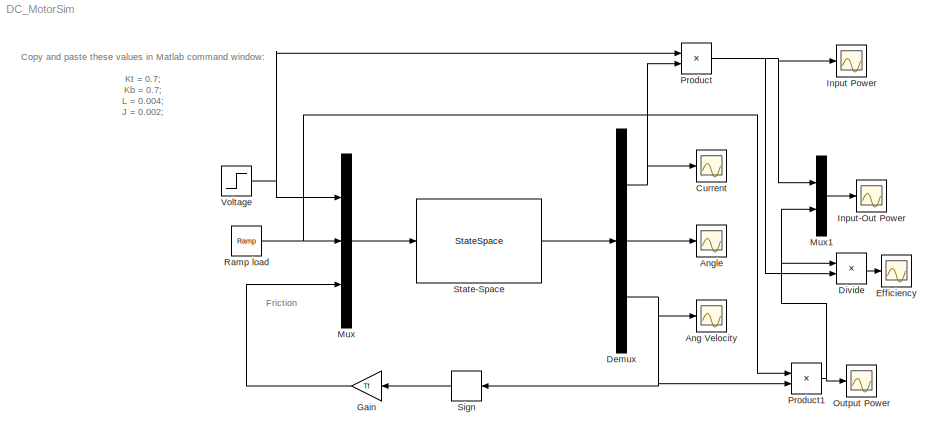
MODEL DC_MotorSim
KIND model
BLOCK [Scope] Ang Velocity
  Ports = [1]
  SID = 7
  ScopeSpecificationString = Simulink.scopes.TimeScopeBlockCfg('CurrentConfiguration', extmgr.ConfigurationSet(extmgr.Configuration('Core','General UI',true),extmgr.Configuration('Core','Source UI',true),extmgr.Configuration('Sources','WiredSimulink',true,'DataLoggingVariableName','ScopeData2'),extmgr.Configuration('Visuals','Time Domain',true,'SerializedDisplays',{struct('MinYLimReal','-0.91507','MaxYLimReal','0.99839','YLab...<+1412ch>
BLOCK [Scope] Angle
  Ports = [1]
  SID = 6
  ScopeSpecificationString = Simulink.scopes.TimeScopeBlockCfg('CurrentConfiguration', extmgr.ConfigurationSet(extmgr.Configuration('Core','General UI',true),extmgr.Configuration('Core','Source UI',true),extmgr.Configuration('Sources','WiredSimulink',true,'DataLoggingVariableName','ScopeData1'),extmgr.Configuration('Visuals','Time Domain',true,'SerializedDisplays',{struct('MinYLimReal','-0.15872','MaxYLimReal','1.42852','YLab...<+1393ch>
BLOCK [Scope] Current
  Ports = [1]
  SID = 5
  ScopeSpecificationString = Simulink.scopes.TimeScopeBlockCfg('CurrentConfiguration', extmgr.ConfigurationSet(extmgr.Configuration('Core','General UI',true),extmgr.Configuration('Core','Source UI',true),extmgr.Configuration('Sources','WiredSimulink',true),extmgr.Configuration('Visuals','Time Domain',true,'SerializedDisplays',{struct('MinYLimReal','-0.01225','MaxYLimReal','0.11023','YLabelReal','','MinYLimMag','0.00000','MaxY...<+1354ch>
BLOCK [Demux] Demux
  DisplayOption = bar
  Outputs = 3
  Ports = [1, 3]
  SID = 3
BLOCK [Product] Divide
  InputSameDT = off
  Inputs = */
  OutDataTypeStr = Inherit: Inherit via internal rule
  Ports = [2, 1]
  RndMeth = Floor
  SID = 22
  SaturateOnIntegerOverflow = off
BLOCK [Scope] Efficiency
  Ports = [1]
  SID = 23
  ScopeSpecificationString = Simulink.scopes.TimeScopeBlockCfg('CurrentConfiguration', extmgr.ConfigurationSet(extmgr.Configuration('Core','General UI',true),extmgr.Configuration('Core','Source UI',true),extmgr.Configuration('Sources','WiredSimulink',true,'DataLoggingVariableName','ScopeData3'),extmgr.Configuration('Visuals','Time Domain',true,'SerializedDisplays',{struct('MinYLimReal','-0.02152','MaxYLimReal','0.19364','YLab...<+1411ch>
BLOCK [Gain] Gain
  Gain = Tf
  OutDataTypeStr = Inherit: Inherit via internal rule
  ParamDataTypeStr = Inherit: Inherit via internal rule
  SID = 12
  SaturateOnIntegerOverflow = off
BLOCK [Scope] Input Power
  Ports = [1]
  SID = 10
  ScopeSpecificationString = Simulink.scopes.TimeScopeBlockCfg('CurrentConfiguration', extmgr.ConfigurationSet(extmgr.Configuration('Core','General UI',true),extmgr.Configuration('Core','Source UI',true),extmgr.Configuration('Sources','WiredSimulink',true,'DataLoggingVariableName','ScopeData3'),extmgr.Configuration('Visuals','Time Domain',true,'SerializedDisplays',{struct('MinYLimReal','-0.01225','MaxYLimReal','0.11023','YLab...<+1393ch>
BLOCK [Scope] Input-Out Power
  Ports = [1]
  SID = 19
  ScopeSpecificationString = Simulink.scopes.TimeScopeBlockCfg('CurrentConfiguration', extmgr.ConfigurationSet(extmgr.Configuration('Core','General UI',true),extmgr.Configuration('Core','Source UI',true),extmgr.Configuration('Sources','WiredSimulink',true,'DataLoggingVariableName','ScopeData2'),extmgr.Configuration('Visuals','Time Domain',true,'SerializedDisplays',{struct('MinYLimReal','-0.01225','MaxYLimReal','0.11023','YLab...<+1404ch>
BLOCK [Mux] Mux
  DisplayOption = bar
  Inputs = 3
  Ports = [3, 1]
  SID = 2
BLOCK [Mux] Mux1
  DisplayOption = bar
  Inputs = 2
  Ports = [2, 1]
  SID = 20
BLOCK [Scope] Output Power
  Ports = [1]
  SID = 18
  ScopeSpecificationString = Simulink.scopes.TimeScopeBlockCfg('CurrentConfiguration', extmgr.ConfigurationSet(extmgr.Configuration('Core','General UI',true),extmgr.Configuration('Core','Source UI',true),extmgr.Configuration('Sources','WiredSimulink',true,'DataLoggingVariableName','ScopeData1'),extmgr.Configuration('Visuals','Time Domain',true,'SerializedDisplays',{struct('MinYLimReal','-0.00141','MaxYLimReal','0.01273','YLab...<+1394ch>
BLOCK [Product] Product
  InputSameDT = off
  OutDataTypeStr = Inherit: Inherit via internal rule
  Ports = [2, 1]
  RndMeth = Floor
  SID = 9
  SaturateOnIntegerOverflow = off
BLOCK [Product] Product1
  InputSameDT = off
  OutDataTypeStr = Inherit: Inherit via internal rule
  Ports = [2, 1]
  RndMeth = Floor
  SID = 17
  SaturateOnIntegerOverflow = off
BLOCK [Reference] Ramp load  REF=simulink/Sources/Ramp
  Ports = [0, 1]
  SID = 14
  SourceBlock = simulink/Sources/Ramp
  SourceType = Ramp
  VectorParams1D = on
  X0 = 0
  slope = 0.05
  start = 1
BLOCK [Signum] Sign
  SID = 11
BLOCK [StateSpace] State-Space
  A = [-R/L 0 -Kb/L; 0 0 1; Kt/J 0 -C/J]
  B = [1/L 0 0; 0 0 0; 0 -1/J -1/J]
  C = eye(3)
  D = zeros(3,3)
  Ports = [1, 1]
  SID = 1
  X0 = 0
BLOCK [Step] Voltage
  SID = 4
  SampleTime = 0
  Time = 0
ANNOTATION (root): Copy and paste these values in Matlab command window:\n\nKt = 0.7;\nKb = 0.7;\nL = 0.004;\nJ = 0.002;\nTf = 0.02;\nC = 0.01;\nR = 10;\n
ANNOTATION (root): Friction
NET Demux:1 -> Current:1, Product:2
LINE Demux:2 -> Angle:1
NET Demux:3 -> Ang Velocity:1, Product1:2, Sign:1
LINE Divide:1 -> Efficiency:1
LINE Gain:1 -> Mux:3
LINE Mux1:1 -> Input-Out Power:1
LINE Mux:1 -> State-Space:1
NET Product1:1 -> Divide:1, Mux1:2, Output Power:1
NET Product:1 -> Divide:2, Input Power:1, Mux1:1
NET Ramp load:1 -> Mux:2, Product1:1
LINE Sign:1 -> Gain:1
LINE State-Space:1 -> Demux:1
NET Voltage:1 -> Mux:1, Product:1
note: NET lines group one-source signal fan-out (src -> all destinations, sorted); 1:1 wires keep LINE
